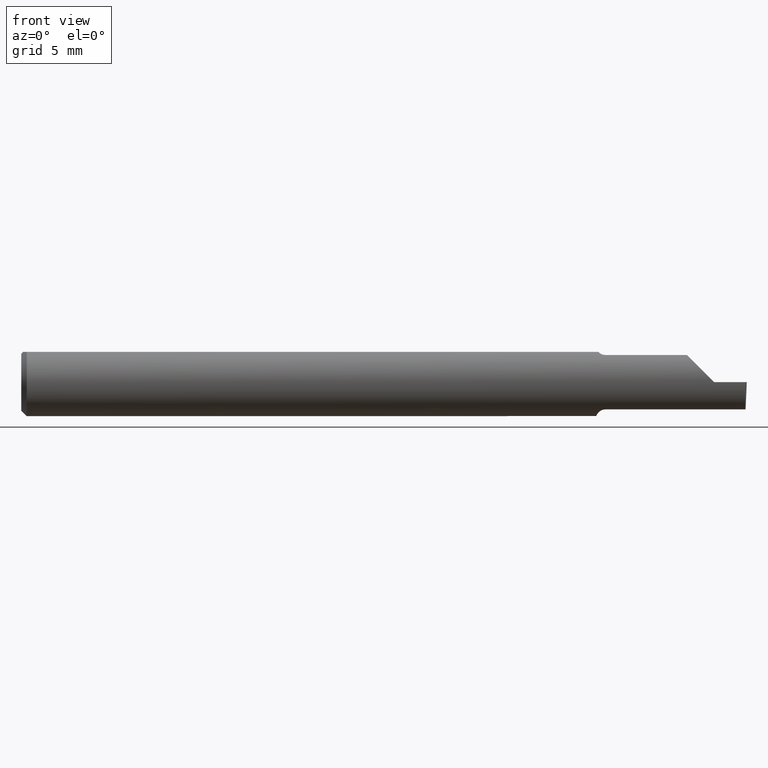
[diagram: clean part render]
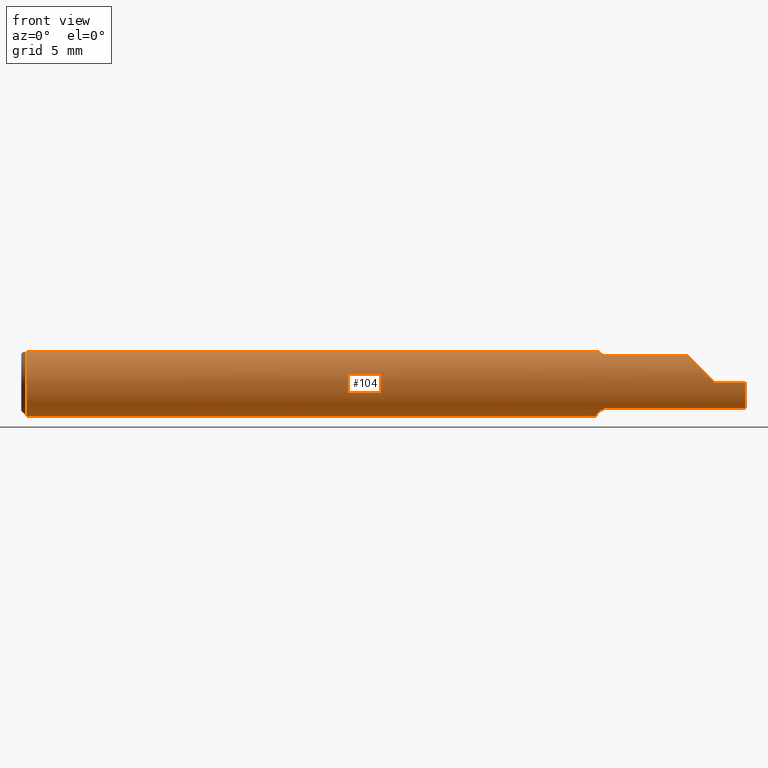
[diagram: same view with one face highlighted and labeled with its STEP entity id]
A machine part, front view. The second image highlights one B-rep face of the part: STEP entity #104.
In plain terms, the highlighted cylindrical surface (edge-blend (fillet) strip) has radius 2.3774 mm, axis along (-1, -0, -0).
Its self-contained STEP definition (entity closure, byte-faithful):
#4 = ORIENTED_EDGE ( 'NONE', *, *, #306, .F. ) ;
#10 = CARTESIAN_POINT ( 'NONE',  ( 1.910000000000000142, -0.09359999999999998876, 1.102182119232621301E-17 ) ) ;
#15 = CARTESIAN_POINT ( 'NONE',  ( 1.591356684838558300, -0.04259999999999997122, -0.08334386600104412568 ) ) ;
#18 = CARTESIAN_POINT ( 'NONE',  ( 1.588953896433696000, -0.03733827064844358334, -0.08603332211978831356 ) ) ;
#19 = DIRECTION ( 'NONE',  ( 0.000000000000000000, 0.000000000000000000, -1.000000000000000000 ) ) ;
#27 = EDGE_CURVE ( 'NONE', #508, #108, #586, .T. ) ;
#33 = EDGE_CURVE ( 'NONE', #239, #719, #749, .T. ) ;
#37 = CARTESIAN_POINT ( 'NONE',  ( 0.000000000000000000, 0.000000000000000000, 0.000000000000000000 ) ) ;
#40 = EDGE_CURVE ( 'NONE', #288, #683, #569, .T. ) ;
#43 = CARTESIAN_POINT ( 'NONE',  ( 1.591280153739604630, -0.04243240890922537339, 0.08342952773968856373 ) ) ;
#45 = CIRCLE ( 'NONE', #652, 0.09359999999999998876 ) ;
#52 = LINE ( 'NONE', #228, #63 ) ;
#57 = CARTESIAN_POINT ( 'NONE',  ( 1.601469028275930517, -0.05559939362423894915, 0.07530665289274067475 ) ) ;
#63 = VECTOR ( 'NONE', #658, 39.37007874015748854 ) ;
#67 = ORIENTED_EDGE ( 'NONE', *, *, #330, .T. ) ;
#69 = LINE ( 'NONE', #369, #334 ) ;
#75 = CARTESIAN_POINT ( 'NONE',  ( 1.789749999999999730, -0.05810704225352112534, 0.07337936794867826185 ) ) ;
#76 = CARTESIAN_POINT ( 'NONE',  ( 1.593086474849918499, -0.04638796853538176834, -0.08140770120152256151 ) ) ;
#77 = VERTEX_POINT ( 'NONE', #748 ) ;
#79 = VECTOR ( 'NONE', #506, 39.37007874015748143 ) ;
#84 = CARTESIAN_POINT ( 'NONE',  ( 1.607653034764491506, -0.05810704225352129881, -0.07337936794867812307 ) ) ;
#97 = CARTESIAN_POINT ( 'NONE',  ( 1.996789369178486595, -0.09359999999634724399, 1.727064904157919157E-17 ) ) ;
#102 = CARTESIAN_POINT ( 'NONE',  ( 0.01499999999999999944, 0.000000000000000000, 0.000000000000000000 ) ) ;
#104 = ADVANCED_FACE ( 'NONE', ( #229 ), #465, .T. ) ;
#108 = VERTEX_POINT ( 'NONE', #461 ) ;
#113 = CARTESIAN_POINT ( 'NONE',  ( 1.599746577633803568, -0.05429945193459817521, 0.07626038032150797563 ) ) ;
#128 = VERTEX_POINT ( 'NONE', #97 ) ;
#129 = AXIS2_PLACEMENT_3D ( 'NONE', #37, #513, #416 ) ;
#137 = CARTESIAN_POINT ( 'NONE',  ( 1.584999999999999520, 0.000000000000000000, 0.000000000000000000 ) ) ;
#152 = CARTESIAN_POINT ( 'NONE',  ( 1.595264545693809044, -0.04993027844100268037, -0.07924826417278514612 ) ) ;
#159 = LINE ( 'NONE', #590, #767 ) ;
#160 = VERTEX_POINT ( 'NONE', #529 ) ;
#165 = VECTOR ( 'NONE', #457, 39.37007874015748143 ) ;
#168 = EDGE_CURVE ( 'NONE', #705, #77, #599, .T. ) ;
#174 = CARTESIAN_POINT ( 'NONE',  ( 1.607655343791670077, -0.05810704225352127106, 0.07337936794867813695 ) ) ;
#180 = EDGE_CURVE ( 'NONE', #128, #705, #159, .T. ) ;
#185 = DIRECTION ( 'NONE',  ( -1.000000000000000000, -0.000000000000000000, -0.000000000000000000 ) ) ;
#186 = B_SPLINE_CURVE_WITH_KNOTS ( 'NONE', 3,
 ( #15, #18, #304, #613, #433, #373 ),
 .UNSPECIFIED., .F., .F.,
 ( 4, 2, 4 ),
 ( 0.0007041963409106363411, 0.001193146413573859584, 0.001682096486237082827 ),
 .UNSPECIFIED. ) ;
#188 = ORIENTED_EDGE ( 'NONE', *, *, #476, .F. ) ;
#190 = CARTESIAN_POINT ( 'NONE',  ( 0.01499999999999999944, -0.04209513035969836975, 0.08359999999999999376 ) ) ;
#203 = EDGE_CURVE ( 'NONE', #638, #230, #45, .T. ) ;
#206 = DIRECTION ( 'NONE',  ( -1.000000000000000000, -0.000000000000000000, -0.000000000000000000 ) ) ;
#207 = ORIENTED_EDGE ( 'NONE', *, *, #668, .F. ) ;
#210 = CARTESIAN_POINT ( 'NONE',  ( 0.01499999999999999944, 0.000000000000000000, 0.000000000000000000 ) ) ;
#217 = CARTESIAN_POINT ( 'NONE',  ( 0.01499999999999999944, 0.000000000000000000, -0.09359999999999998876 ) ) ;
#228 = CARTESIAN_POINT ( 'NONE',  ( 1.994172072281005459, -0.09355431490906530867, -0.09996576130738767108 ) ) ;
#229 = FACE_OUTER_BOUND ( 'NONE', #702, .T. ) ;
#230 = VERTEX_POINT ( 'NONE', #217 ) ;
#234 = VERTEX_POINT ( 'NONE', #358 ) ;
#239 = VERTEX_POINT ( 'NONE', #427 ) ;
#258 = CARTESIAN_POINT ( 'NONE',  ( 0.000000000000000000, 0.04209513035969836975, 0.08359999999999999376 ) ) ;
#262 = CIRCLE ( 'NONE', #368, 0.09359999999999998876 ) ;
#264 = LINE ( 'NONE', #258, #79 ) ;
#278 = ORIENTED_EDGE ( 'NONE', *, *, #685, .F. ) ;
#288 = VERTEX_POINT ( 'NONE', #190 ) ;
#294 = CARTESIAN_POINT ( 'NONE',  ( 1.995486889784650497, -0.05810704225352112534, -0.07337936794867826185 ) ) ;
#304 = CARTESIAN_POINT ( 'NONE',  ( 1.587415450430337271, -0.03151229630690470518, -0.08835846806355296401 ) ) ;
#305 = CARTESIAN_POINT ( 'NONE',  ( 1.591356684838558300, -0.04259999999999997816, 0.08334386600104415344 ) ) ;
#306 = EDGE_CURVE ( 'NONE', #160, #647, #400, .T. ) ;
#320 = CARTESIAN_POINT ( 'NONE',  ( 1.605389671955115727, -0.05750350940205799927, -0.07386306649500064270 ) ) ;
#325 = CARTESIAN_POINT ( 'NONE',  ( 1.599728336617688651, -0.05428341532129050961, -0.07627162539867091140 ) ) ;
#330 = EDGE_CURVE ( 'NONE', #466, #234, #570, .T. ) ;
#334 = VECTOR ( 'NONE', #185, 39.37007874015748143 ) ;
#355 = CARTESIAN_POINT ( 'NONE',  ( 1.609999999999999654, -0.05810704225352114616, 0.07337936794867824797 ) ) ;
#358 = CARTESIAN_POINT ( 'NONE',  ( 1.996788249052547481, -0.09359999022555406945, -4.277588313357508156E-05 ) ) ;
#360 = CARTESIAN_POINT ( 'NONE',  ( 1.591129652885479029, -0.04209513035970094408, 0.08359999999999999376 ) ) ;
#366 = ORIENTED_EDGE ( 'NONE', *, *, #180, .T. ) ;
#368 = AXIS2_PLACEMENT_3D ( 'NONE', #210, #206, #456 ) ;
#369 = CARTESIAN_POINT ( 'NONE',  ( 1.789749999999999730, -0.05810704225352112534, -0.07337936794867826185 ) ) ;
#370 = EDGE_CURVE ( 'NONE', #719, #638, #264, .T. ) ;
#373 = CARTESIAN_POINT ( 'NONE',  ( 1.584999999999999520, -0.006757276995305157297, -0.09335576686851604356 ) ) ;
#378 = CARTESIAN_POINT ( 'NONE',  ( 1.584999999999999520, 0.04209513035969834893, 0.08359999999999999376 ) ) ;
#394 = CARTESIAN_POINT ( 'NONE',  ( 1.609999999999999654, -0.05810704225352111146, -0.07337936794867826185 ) ) ;
#400 = B_SPLINE_CURVE_WITH_KNOTS ( 'NONE', 3,
 ( #305, #722, #533, #113, #57, #731, #174, #355 ),
 .UNSPECIFIED., .F., .F.,
 ( 4, 2, 2, 4 ),
 ( 1.584523690453573094E-05, 0.0003656721978374746925, 0.0005405856783039505531, 0.0007154991587704265764 ),
 .UNSPECIFIED. ) ;
#412 = DIRECTION ( 'NONE',  ( -1.000000000000000000, -0.000000000000000000, -0.000000000000000000 ) ) ;
#416 = DIRECTION ( 'NONE',  ( 0.000000000000000000, 0.000000000000000000, 1.000000000000000000 ) ) ;
#417 = ORIENTED_EDGE ( 'NONE', *, *, #27, .F. ) ;
#420 = DIRECTION ( 'NONE',  ( -1.000000000000000000, -0.000000000000000000, -0.000000000000000000 ) ) ;
#425 = ORIENTED_EDGE ( 'NONE', *, *, #578, .T. ) ;
#427 = CARTESIAN_POINT ( 'NONE',  ( 1.584999999999999520, -0.006757276995305157297, -0.09335576686851604356 ) ) ;
#432 = EDGE_CURVE ( 'NONE', #230, #288, #262, .T. ) ;
#433 = CARTESIAN_POINT ( 'NONE',  ( 1.584999999999999520, -0.01308640439514264717, -0.09289765197734373148 ) ) ;
#435 = ORIENTED_EDGE ( 'NONE', *, *, #693, .F. ) ;
#436 = AXIS2_PLACEMENT_3D ( 'NONE', #137, #499, #19 ) ;
#444 = CARTESIAN_POINT ( 'NONE',  ( 1.591356684838558300, -0.04259999999999997122, -0.08334386600104412568 ) ) ;
#456 = DIRECTION ( 'NONE',  ( 0.000000000000000000, 0.000000000000000000, 1.000000000000000000 ) ) ;
#457 = DIRECTION ( 'NONE',  ( 1.000000000000000000, 0.000000000000000000, 0.000000000000000000 ) ) ;
#461 = CARTESIAN_POINT ( 'NONE',  ( 1.591356684838558300, -0.04259999999999997122, -0.08334386600104412568 ) ) ;
#462 = ORIENTED_EDGE ( 'NONE', *, *, #203, .F. ) ;
#465 = CYLINDRICAL_SURFACE ( 'NONE', #129, 0.09359999999999998876 ) ;
#466 = VERTEX_POINT ( 'NONE', #483 ) ;
#468 = CARTESIAN_POINT ( 'NONE',  ( 1.836620632051322310, -0.05810704225352113922, 0.07337936794867826185 ) ) ;
#470 = CARTESIAN_POINT ( 'NONE',  ( 1.609999999999999654, -0.05810704225352111146, -0.07337936794867826185 ) ) ;
#476 = EDGE_CURVE ( 'NONE', #683, #160, #698, .T. ) ;
#483 = CARTESIAN_POINT ( 'NONE',  ( 1.995486889784650497, -0.05810704225352112534, -0.07337936794867826185 ) ) ;
#484 = CARTESIAN_POINT ( 'NONE',  ( 1.995561922431088098, -0.08091355869144019330, -0.05531953381055033925 ) ) ;
#499 = DIRECTION ( 'NONE',  ( 1.000000000000000000, 0.000000000000000000, 0.000000000000000000 ) ) ;
#506 = DIRECTION ( 'NONE',  ( -1.000000000000000000, -0.000000000000000000, -0.000000000000000000 ) ) ;
#508 = VERTEX_POINT ( 'NONE', #470 ) ;
#513 = DIRECTION ( 'NONE',  ( -1.000000000000000000, -0.000000000000000000, -0.000000000000000000 ) ) ;
#515 = ORIENTED_EDGE ( 'NONE', *, *, #168, .T. ) ;
#529 = CARTESIAN_POINT ( 'NONE',  ( 1.591356684838558300, -0.04259999999999997816, 0.08334386600104415344 ) ) ;
#532 = CARTESIAN_POINT ( 'NONE',  ( 1.591129652885479029, -0.04209513035970094408, 0.08359999999999999376 ) ) ;
#533 = CARTESIAN_POINT ( 'NONE',  ( 1.595259025420518784, -0.04992838138009422083, 0.07925011723318650669 ) ) ;
#537 = CARTESIAN_POINT ( 'NONE',  ( 1.996026586675631709, -0.09358669535931163352, -0.02913391928411206838 ) ) ;
#553 = VECTOR ( 'NONE', #730, 39.37007874015748143 ) ;
#554 = CARTESIAN_POINT ( 'NONE',  ( 1.609999999999999654, -0.05810704225352114616, 0.07337936794867824797 ) ) ;
#569 = LINE ( 'NONE', #574, #165 ) ;
#570 =( BOUNDED_CURVE ( )  B_SPLINE_CURVE ( 3, ( #294, #484, #537, #725 ),
 .UNSPECIFIED., .F., .T. ) 
 B_SPLINE_CURVE_WITH_KNOTS ( ( 4, 4 ),
 ( 0.08204942185700578317, 0.9826237902196912621 ),
 .UNSPECIFIED. ) 
 CURVE ( )  GEOMETRIC_REPRESENTATION_ITEM ( )  RATIONAL_B_SPLINE_CURVE ( ( 1.000000000000000000, 0.9335481000009943076, 0.9335481000009943076, 1.000000000000000000 ) ) 
 REPRESENTATION_ITEM ( '' )  );
#574 = CARTESIAN_POINT ( 'NONE',  ( 0.000000000000000000, -0.04209513035969836975, 0.08359999999999999376 ) ) ;
#578 = EDGE_CURVE ( 'NONE', #234, #128, #52, .T. ) ;
#583 = DIRECTION ( 'NONE',  ( 0.000000000000000000, 0.000000000000000000, 1.000000000000000000 ) ) ;
#586 = B_SPLINE_CURVE_WITH_KNOTS ( 'NONE', 3,
 ( #394, #84, #320, #678, #325, #152, #76, #444 ),
 .UNSPECIFIED., .F., .F.,
 ( 4, 2, 2, 4 ),
 ( 1.968126669309311202E-07, 0.0001761966947278539039, 0.0003521965767887768836, 0.0007041963409106363411 ),
 .UNSPECIFIED. ) ;
#590 = CARTESIAN_POINT ( 'NONE',  ( 2.999519565323743132E-32, -0.09359999999999998876, 2.449293598294717754E-16 ) ) ;
#596 = CARTESIAN_POINT ( 'NONE',  ( 1.854690286057537829, -0.08092595952420826577, 0.05530971394246238237 ) ) ;
#599 =( BOUNDED_CURVE ( )  B_SPLINE_CURVE ( 3, ( #656, #708, #596, #468 ),
 .UNSPECIFIED., .F., .F. ) 
 B_SPLINE_CURVE_WITH_KNOTS ( ( 4, 4 ),
 ( 4.712388980384689674, 5.613420356061718408 ),
 .UNSPECIFIED. ) 
 CURVE ( )  GEOMETRIC_REPRESENTATION_ITEM ( )  RATIONAL_B_SPLINE_CURVE ( ( 1.000000000000000000, 0.9334817841311876530, 0.9334817841311876530, 1.000000000000000000 ) ) 
 REPRESENTATION_ITEM ( '' )  );
#613 = CARTESIAN_POINT ( 'NONE',  ( 1.585436655799338901, -0.01945041057485635827, -0.09177104786119411051 ) ) ;
#619 = LINE ( 'NONE', #75, #553 ) ;
#621 = ORIENTED_EDGE ( 'NONE', *, *, #33, .F. ) ;
#627 = ORIENTED_EDGE ( 'NONE', *, *, #40, .F. ) ;
#638 = VERTEX_POINT ( 'NONE', #670 ) ;
#647 = VERTEX_POINT ( 'NONE', #554 ) ;
#652 = AXIS2_PLACEMENT_3D ( 'NONE', #102, #412, #583 ) ;
#656 = CARTESIAN_POINT ( 'NONE',  ( 1.910000000000000142, -0.09359999999999998876, 1.102182119232621301E-17 ) ) ;
#658 = DIRECTION ( 'NONE',  ( 0.02617296143184116158, -0.0004568507411563391195, 0.9996573249755575929 ) ) ;
#663 = ORIENTED_EDGE ( 'NONE', *, *, #432, .F. ) ;
#668 = EDGE_CURVE ( 'NONE', #466, #508, #69, .T. ) ;
#670 = CARTESIAN_POINT ( 'NONE',  ( 0.01499999999999999598, 0.04209513035969836975, 0.08359999999999999376 ) ) ;
#678 = CARTESIAN_POINT ( 'NONE',  ( 1.601446782524424073, -0.05558685324519236498, -0.07531605361338915283 ) ) ;
#683 = VERTEX_POINT ( 'NONE', #360 ) ;
#685 = EDGE_CURVE ( 'NONE', #108, #239, #186, .T. ) ;
#693 = EDGE_CURVE ( 'NONE', #647, #77, #619, .T. ) ;
#698 = B_SPLINE_CURVE_WITH_KNOTS ( 'NONE', 3,
 ( #532, #706, #43, #777 ),
 .UNSPECIFIED., .F., .F.,
 ( 4, 4 ),
 ( 4.741820243502701581E-07, 1.584523690453573094E-05 ),
 .UNSPECIFIED. ) ;
#702 = EDGE_LOOP ( 'NONE', ( #67, #425, #366, #515, #435, #4, #188, #627, #663, #462, #753, #621, #278, #417, #207 ) ) ;
#705 = VERTEX_POINT ( 'NONE', #10 ) ;
#706 = CARTESIAN_POINT ( 'NONE',  ( 1.591204482410373933, -0.04226411763296330365, 0.08351490979309549034 ) ) ;
#708 = CARTESIAN_POINT ( 'NONE',  ( 1.880893035518783396, -0.09359999999999998876, 0.02910696448121675300 ) ) ;
#719 = VERTEX_POINT ( 'NONE', #378 ) ;
#722 = CARTESIAN_POINT ( 'NONE',  ( 1.593098441794897902, -0.04641417426599063478, 0.08139430652501544738 ) ) ;
#725 = CARTESIAN_POINT ( 'NONE',  ( 1.996788249052547481, -0.09359999022555406945, -4.277588313357508156E-05 ) ) ;
#730 = DIRECTION ( 'NONE',  ( 1.000000000000000000, 0.000000000000000000, 0.000000000000000000 ) ) ;
#731 = CARTESIAN_POINT ( 'NONE',  ( 1.605389214148233989, -0.05750155061631040398, 0.07386444488392698848 ) ) ;
#748 = CARTESIAN_POINT ( 'NONE',  ( 1.836620632051322310, -0.05810704225352113922, 0.07337936794867826185 ) ) ;
#749 = CIRCLE ( 'NONE', #436, 0.09359999999999998876 ) ;
#753 = ORIENTED_EDGE ( 'NONE', *, *, #370, .F. ) ;
#767 = VECTOR ( 'NONE', #420, 39.37007874015748143 ) ;
#777 = CARTESIAN_POINT ( 'NONE',  ( 1.591356684838558300, -0.04259999999999997816, 0.08334386600104415344 ) ) ;